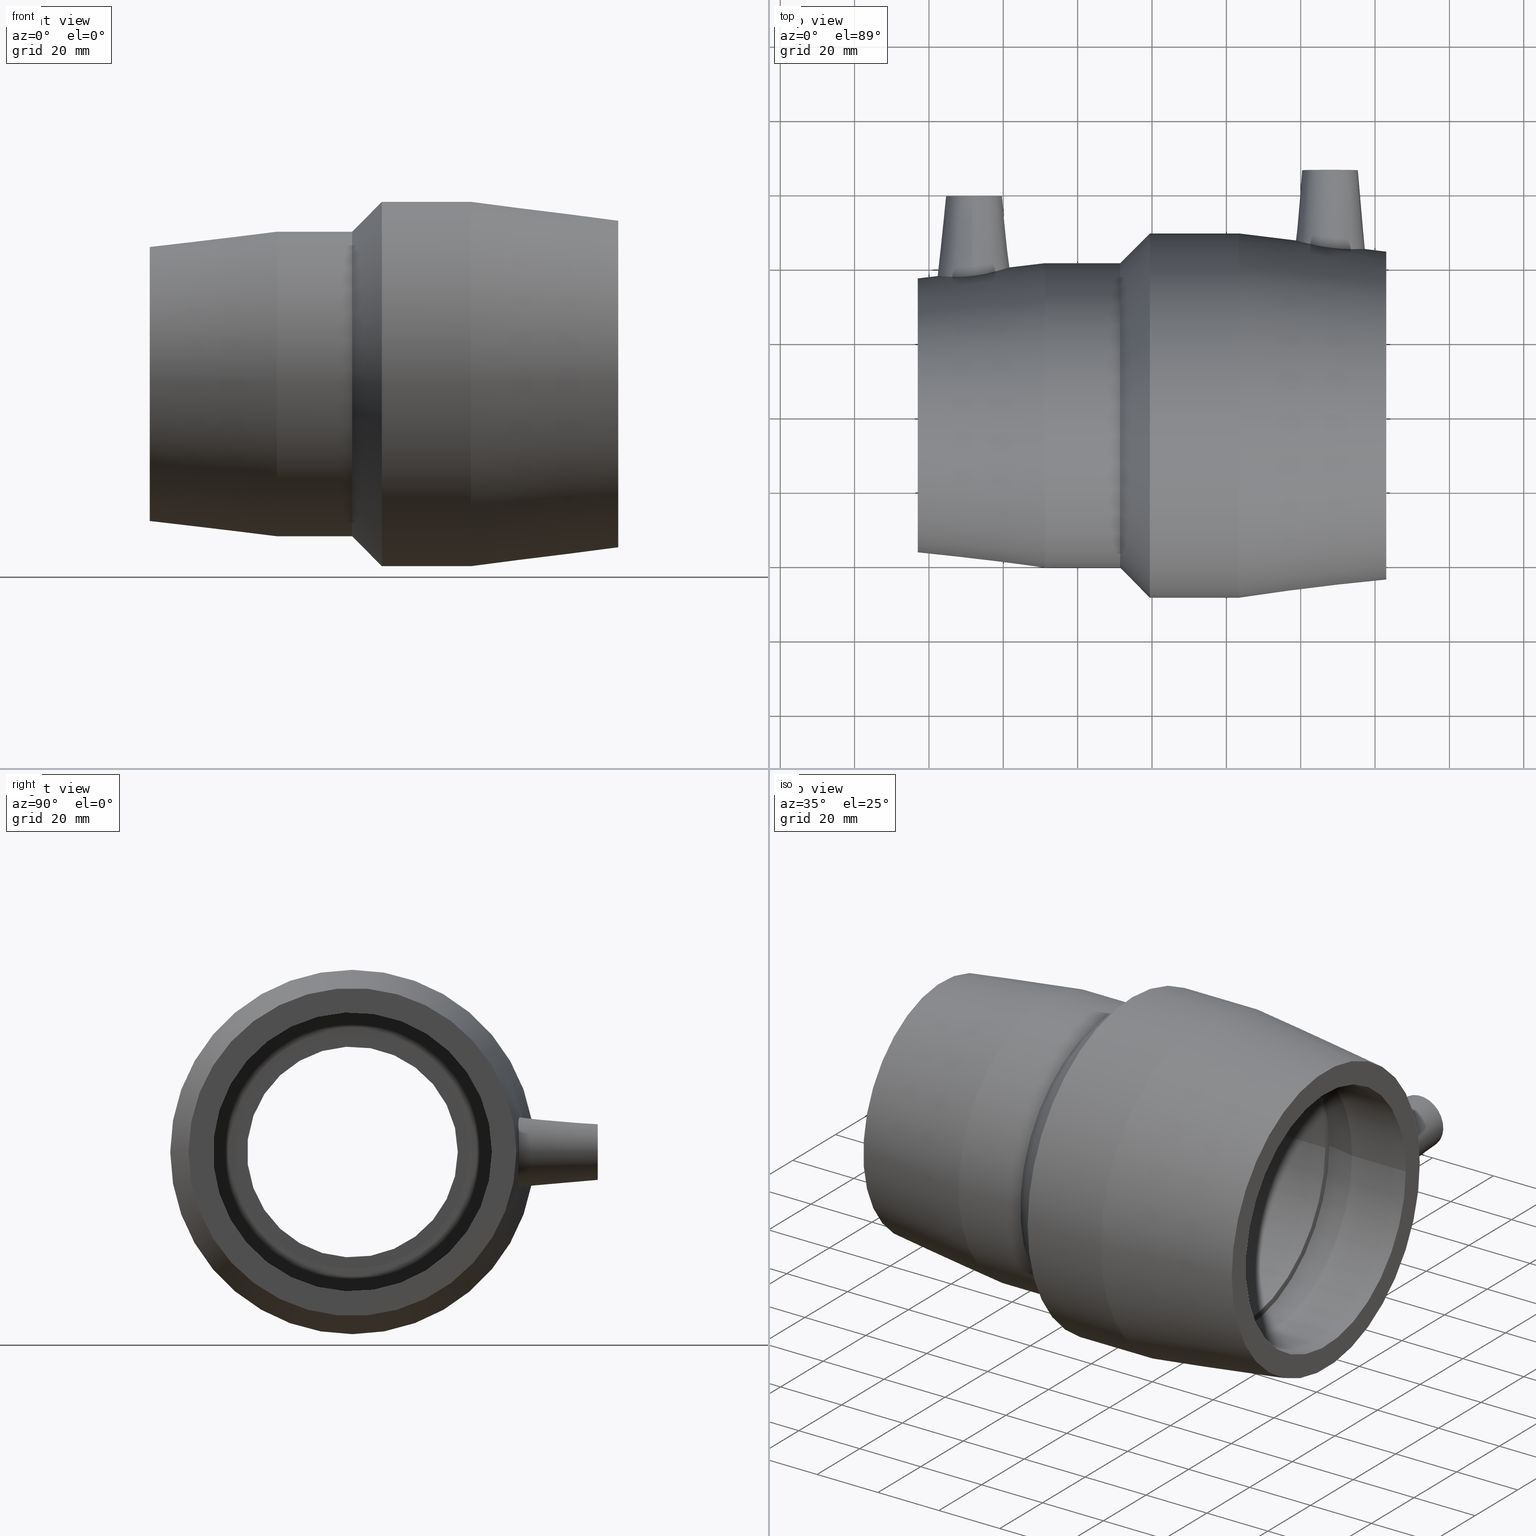
[diagram: canonical four-view strip — front | top / right | iso, engineering-drawing reading convention]
A machine part, canonical four-view strip (front | top / right | iso — engineering-drawing reading convention). The complete STEP part file that produces these views, byte-faithful:
ISO-10303-21;
HEADER;
/* Generated by software containing ST-Developer
 * from STEP Tools, Inc. (www.steptools.com) 
 */

FILE_DESCRIPTION(
/* description */ ('PLASSON REDUCING COUPLER 75-63'),
/* implementation_level */ '2;1');

FILE_NAME(
/* name */ 
'C:\\Dropbox\\KIMPROJECTS-Inventor\\99-16-3568-Processing\\ElectroFusi
on Fittings\\491104\\491104075063.ipt.stp',
/* time_stamp */ '2017-11-06T09:12:37+02:00',
/* author */ ('KIM'),
/* organization */ (''),
/* preprocessor_version */ 'ST-DEVELOPER v15.6',
/* originating_system */ 'Autodesk Inventor 2015',
/* authorisation */ '');

FILE_SCHEMA (('AUTOMOTIVE_DESIGN { 1 0 10303 214 3 1 1 }'));
ENDSEC;

DATA;
#10=MECHANICAL_DESIGN_GEOMETRIC_PRESENTATION_REPRESENTATION('',(#13),#703);
#11=SHAPE_REPRESENTATION_RELATIONSHIP('SRR','None',#712,#12);
#12=ADVANCED_BREP_SHAPE_REPRESENTATION($,(#14),#702);
#13=STYLED_ITEM('',(#721),#14);
#14=MANIFOLD_SOLID_BREP('Solid1',#356);
#15=B_SPLINE_CURVE_WITH_KNOTS('',3,(#561,#562,#563,#564,#565,#566,#567,
#568,#569,#570,#571,#572,#573,#574,#575,#576,#577,#578,#579,#580,#581,#582,
#583,#584,#585,#586,#587,#588,#589,#590,#591,#592,#593,#594),
 .UNSPECIFIED.,.T.,.F.,(4,2,2,2,2,2,2,2,2,2,2,2,2,2,2,2,4),(0.,0.34395620043497,
0.687912400869939,1.03348761298647,1.379062825103,1.72463803721953,2.07021324933607,
2.41416944977103,2.758125650206,3.12198560109004,3.48584555197407,3.84258252450327,
4.19931949703247,4.55605646956167,4.91279344209087,5.2766533929749,5.64051334385893),
 .UNSPECIFIED.);
#16=B_SPLINE_CURVE_WITH_KNOTS('',3,(#609,#610,#611,#612,#613,#614,#615,
#616,#617,#618,#619,#620,#621,#622,#623,#624,#625,#626,#627,#628,#629,#630,
#631,#632,#633,#634,#635,#636,#637,#638,#639,#640,#641,#642),
 .UNSPECIFIED.,.T.,.F.,(4,2,2,2,2,2,2,2,2,2,2,2,2,2,2,2,4),(0.,0.357374334644562,
0.714748669289124,1.07469605435596,1.43464343942279,1.79459082448962,2.15453820955646,
2.51191254420102,2.86928687884558,3.25210957605802,3.63493227327046,4.00840584046492,
4.38187940765938,4.75535297485385,5.12882654204831,5.51164923926075,5.89447193647319),
 .UNSPECIFIED.);
#17=CONICAL_SURFACE('',#370,7.5,5.);
#18=CONICAL_SURFACE('',#379,7.5,6.);
#19=CONICAL_SURFACE('',#383,45.,45.);
#20=CONICAL_SURFACE('',#387,46.55,7.0537751303925);
#21=CONICAL_SURFACE('',#393,38.4352488713481,12.);
#22=CONICAL_SURFACE('',#399,34.5,88.5679038158355);
#23=CONICAL_SURFACE('',#411,32.3077149343461,12.);
#24=CONICAL_SURFACE('',#417,38.95,6.83616718880305);
#25=FACE_BOUND('',#101,.T.);
#26=FACE_BOUND('',#103,.T.);
#27=FACE_BOUND('',#105,.T.);
#28=FACE_BOUND('',#107,.T.);
#29=FACE_BOUND('',#109,.T.);
#30=FACE_BOUND('',#111,.T.);
#31=FACE_BOUND('',#113,.T.);
#32=FACE_BOUND('',#115,.T.);
#33=FACE_BOUND('',#117,.T.);
#34=FACE_BOUND('',#119,.T.);
#35=FACE_BOUND('',#121,.T.);
#36=FACE_BOUND('',#123,.T.);
#37=FACE_BOUND('',#125,.T.);
#38=FACE_BOUND('',#127,.T.);
#39=FACE_BOUND('',#128,.T.);
#40=FACE_BOUND('',#130,.T.);
#41=FACE_BOUND('',#132,.T.);
#42=FACE_BOUND('',#134,.T.);
#43=FACE_BOUND('',#136,.T.);
#44=FACE_BOUND('',#138,.T.);
#45=FACE_BOUND('',#140,.T.);
#46=FACE_BOUND('',#142,.T.);
#47=FACE_BOUND('',#144,.T.);
#48=FACE_BOUND('',#146,.T.);
#49=FACE_BOUND('',#148,.T.);
#50=FACE_BOUND('',#150,.T.);
#51=FACE_BOUND('',#152,.T.);
#52=FACE_BOUND('',#154,.T.);
#53=FACE_BOUND('',#156,.T.);
#54=FACE_BOUND('',#158,.T.);
#55=FACE_BOUND('',#159,.T.);
#56=CYLINDRICAL_SURFACE('',#362,2.);
#57=CYLINDRICAL_SURFACE('',#364,5.);
#58=CYLINDRICAL_SURFACE('',#371,2.);
#59=CYLINDRICAL_SURFACE('',#373,5.);
#60=CYLINDRICAL_SURFACE('',#380,41.);
#61=CYLINDRICAL_SURFACE('',#385,49.);
#62=CYLINDRICAL_SURFACE('',#391,37.5);
#63=CYLINDRICAL_SURFACE('',#397,37.5);
#64=CYLINDRICAL_SURFACE('',#403,28.35);
#65=CYLINDRICAL_SURFACE('',#407,31.5);
#66=CYLINDRICAL_SURFACE('',#413,31.5);
#67=FACE_OUTER_BOUND('',#98,.T.);
#68=FACE_OUTER_BOUND('',#99,.T.);
#69=FACE_OUTER_BOUND('',#100,.T.);
#70=FACE_OUTER_BOUND('',#102,.T.);
#71=FACE_OUTER_BOUND('',#104,.T.);
#72=FACE_OUTER_BOUND('',#106,.T.);
#73=FACE_OUTER_BOUND('',#108,.T.);
#74=FACE_OUTER_BOUND('',#110,.T.);
#75=FACE_OUTER_BOUND('',#112,.T.);
#76=FACE_OUTER_BOUND('',#114,.T.);
#77=FACE_OUTER_BOUND('',#116,.T.);
#78=FACE_OUTER_BOUND('',#118,.T.);
#79=FACE_OUTER_BOUND('',#120,.T.);
#80=FACE_OUTER_BOUND('',#122,.T.);
#81=FACE_OUTER_BOUND('',#124,.T.);
#82=FACE_OUTER_BOUND('',#126,.T.);
#83=FACE_OUTER_BOUND('',#129,.T.);
#84=FACE_OUTER_BOUND('',#131,.T.);
#85=FACE_OUTER_BOUND('',#133,.T.);
#86=FACE_OUTER_BOUND('',#135,.T.);
#87=FACE_OUTER_BOUND('',#137,.T.);
#88=FACE_OUTER_BOUND('',#139,.T.);
#89=FACE_OUTER_BOUND('',#141,.T.);
#90=FACE_OUTER_BOUND('',#143,.T.);
#91=FACE_OUTER_BOUND('',#145,.T.);
#92=FACE_OUTER_BOUND('',#147,.T.);
#93=FACE_OUTER_BOUND('',#149,.T.);
#94=FACE_OUTER_BOUND('',#151,.T.);
#95=FACE_OUTER_BOUND('',#153,.T.);
#96=FACE_OUTER_BOUND('',#155,.T.);
#97=FACE_OUTER_BOUND('',#157,.T.);
#98=EDGE_LOOP('',(#251));
#99=EDGE_LOOP('',(#252));
#100=EDGE_LOOP('',(#253));
#101=EDGE_LOOP('',(#254));
#102=EDGE_LOOP('',(#255));
#103=EDGE_LOOP('',(#256));
#104=EDGE_LOOP('',(#257));
#105=EDGE_LOOP('',(#258));
#106=EDGE_LOOP('',(#259));
#107=EDGE_LOOP('',(#260));
#108=EDGE_LOOP('',(#261));
#109=EDGE_LOOP('',(#262));
#110=EDGE_LOOP('',(#263));
#111=EDGE_LOOP('',(#264));
#112=EDGE_LOOP('',(#265));
#113=EDGE_LOOP('',(#266));
#114=EDGE_LOOP('',(#267));
#115=EDGE_LOOP('',(#268));
#116=EDGE_LOOP('',(#269));
#117=EDGE_LOOP('',(#270));
#118=EDGE_LOOP('',(#271));
#119=EDGE_LOOP('',(#272));
#120=EDGE_LOOP('',(#273));
#121=EDGE_LOOP('',(#274));
#122=EDGE_LOOP('',(#275));
#123=EDGE_LOOP('',(#276));
#124=EDGE_LOOP('',(#277));
#125=EDGE_LOOP('',(#278));
#126=EDGE_LOOP('',(#279));
#127=EDGE_LOOP('',(#280));
#128=EDGE_LOOP('',(#281));
#129=EDGE_LOOP('',(#282));
#130=EDGE_LOOP('',(#283));
#131=EDGE_LOOP('',(#284));
#132=EDGE_LOOP('',(#285));
#133=EDGE_LOOP('',(#286));
#134=EDGE_LOOP('',(#287));
#135=EDGE_LOOP('',(#288));
#136=EDGE_LOOP('',(#289));
#137=EDGE_LOOP('',(#290));
#138=EDGE_LOOP('',(#291));
#139=EDGE_LOOP('',(#292));
#140=EDGE_LOOP('',(#293));
#141=EDGE_LOOP('',(#294));
#142=EDGE_LOOP('',(#295));
#143=EDGE_LOOP('',(#296));
#144=EDGE_LOOP('',(#297));
#145=EDGE_LOOP('',(#298));
#146=EDGE_LOOP('',(#299));
#147=EDGE_LOOP('',(#300));
#148=EDGE_LOOP('',(#301));
#149=EDGE_LOOP('',(#302));
#150=EDGE_LOOP('',(#303));
#151=EDGE_LOOP('',(#304));
#152=EDGE_LOOP('',(#305));
#153=EDGE_LOOP('',(#306));
#154=EDGE_LOOP('',(#307));
#155=EDGE_LOOP('',(#308));
#156=EDGE_LOOP('',(#309));
#157=EDGE_LOOP('',(#310));
#158=EDGE_LOOP('',(#311));
#159=EDGE_LOOP('',(#312));
#160=CIRCLE('',#359,2.);
#161=CIRCLE('',#361,2.);
#162=CIRCLE('',#363,2.);
#163=CIRCLE('',#365,5.);
#164=CIRCLE('',#366,5.);
#165=CIRCLE('',#369,7.5);
#166=CIRCLE('',#372,2.);
#167=CIRCLE('',#374,5.);
#168=CIRCLE('',#375,5.);
#169=CIRCLE('',#378,7.5);
#170=CIRCLE('',#381,41.);
#171=CIRCLE('',#382,41.);
#172=CIRCLE('',#384,49.);
#173=CIRCLE('',#386,49.);
#174=CIRCLE('',#388,44.1);
#175=CIRCLE('',#390,37.5);
#176=CIRCLE('',#392,37.5);
#177=CIRCLE('',#394,39.3704977426962);
#178=CIRCLE('',#396,37.5);
#179=CIRCLE('',#398,37.5);
#180=CIRCLE('',#400,31.5);
#181=CIRCLE('',#402,28.35);
#182=CIRCLE('',#404,28.35);
#183=CIRCLE('',#406,31.5);
#184=CIRCLE('',#408,31.5);
#185=CIRCLE('',#410,33.1154298686922);
#186=CIRCLE('',#412,31.5);
#187=CIRCLE('',#414,31.5);
#188=CIRCLE('',#416,36.9);
#189=VERTEX_POINT('',#542);
#190=VERTEX_POINT('',#545);
#191=VERTEX_POINT('',#548);
#192=VERTEX_POINT('',#551);
#193=VERTEX_POINT('',#553);
#194=VERTEX_POINT('',#557);
#195=VERTEX_POINT('',#560);
#196=VERTEX_POINT('',#596);
#197=VERTEX_POINT('',#599);
#198=VERTEX_POINT('',#601);
#199=VERTEX_POINT('',#605);
#200=VERTEX_POINT('',#608);
#201=VERTEX_POINT('',#644);
#202=VERTEX_POINT('',#646);
#203=VERTEX_POINT('',#649);
#204=VERTEX_POINT('',#652);
#205=VERTEX_POINT('',#655);
#206=VERTEX_POINT('',#658);
#207=VERTEX_POINT('',#661);
#208=VERTEX_POINT('',#664);
#209=VERTEX_POINT('',#667);
#210=VERTEX_POINT('',#670);
#211=VERTEX_POINT('',#673);
#212=VERTEX_POINT('',#676);
#213=VERTEX_POINT('',#679);
#214=VERTEX_POINT('',#682);
#215=VERTEX_POINT('',#685);
#216=VERTEX_POINT('',#688);
#217=VERTEX_POINT('',#691);
#218=VERTEX_POINT('',#694);
#219=VERTEX_POINT('',#697);
#220=EDGE_CURVE('',#189,#189,#160,.T.);
#221=EDGE_CURVE('',#190,#190,#161,.T.);
#222=EDGE_CURVE('',#191,#191,#162,.T.);
#223=EDGE_CURVE('',#192,#192,#163,.T.);
#224=EDGE_CURVE('',#193,#193,#164,.T.);
#225=EDGE_CURVE('',#194,#194,#165,.T.);
#226=EDGE_CURVE('',#195,#195,#15,.T.);
#227=EDGE_CURVE('',#196,#196,#166,.T.);
#228=EDGE_CURVE('',#197,#197,#167,.T.);
#229=EDGE_CURVE('',#198,#198,#168,.T.);
#230=EDGE_CURVE('',#199,#199,#169,.T.);
#231=EDGE_CURVE('',#200,#200,#16,.T.);
#232=EDGE_CURVE('',#201,#201,#170,.T.);
#233=EDGE_CURVE('',#202,#202,#171,.T.);
#234=EDGE_CURVE('',#203,#203,#172,.T.);
#235=EDGE_CURVE('',#204,#204,#173,.T.);
#236=EDGE_CURVE('',#205,#205,#174,.T.);
#237=EDGE_CURVE('',#206,#206,#175,.T.);
#238=EDGE_CURVE('',#207,#207,#176,.T.);
#239=EDGE_CURVE('',#208,#208,#177,.T.);
#240=EDGE_CURVE('',#209,#209,#178,.T.);
#241=EDGE_CURVE('',#210,#210,#179,.T.);
#242=EDGE_CURVE('',#211,#211,#180,.T.);
#243=EDGE_CURVE('',#212,#212,#181,.T.);
#244=EDGE_CURVE('',#213,#213,#182,.T.);
#245=EDGE_CURVE('',#214,#214,#183,.T.);
#246=EDGE_CURVE('',#215,#215,#184,.T.);
#247=EDGE_CURVE('',#216,#216,#185,.T.);
#248=EDGE_CURVE('',#217,#217,#186,.T.);
#249=EDGE_CURVE('',#218,#218,#187,.T.);
#250=EDGE_CURVE('',#219,#219,#188,.T.);
#251=ORIENTED_EDGE('',*,*,#220,.F.);
#252=ORIENTED_EDGE('',*,*,#221,.F.);
#253=ORIENTED_EDGE('',*,*,#220,.T.);
#254=ORIENTED_EDGE('',*,*,#222,.T.);
#255=ORIENTED_EDGE('',*,*,#223,.T.);
#256=ORIENTED_EDGE('',*,*,#224,.F.);
#257=ORIENTED_EDGE('',*,*,#223,.F.);
#258=ORIENTED_EDGE('',*,*,#222,.F.);
#259=ORIENTED_EDGE('',*,*,#225,.F.);
#260=ORIENTED_EDGE('',*,*,#224,.T.);
#261=ORIENTED_EDGE('',*,*,#225,.T.);
#262=ORIENTED_EDGE('',*,*,#226,.F.);
#263=ORIENTED_EDGE('',*,*,#221,.T.);
#264=ORIENTED_EDGE('',*,*,#227,.T.);
#265=ORIENTED_EDGE('',*,*,#228,.T.);
#266=ORIENTED_EDGE('',*,*,#229,.F.);
#267=ORIENTED_EDGE('',*,*,#228,.F.);
#268=ORIENTED_EDGE('',*,*,#227,.F.);
#269=ORIENTED_EDGE('',*,*,#230,.F.);
#270=ORIENTED_EDGE('',*,*,#229,.T.);
#271=ORIENTED_EDGE('',*,*,#230,.T.);
#272=ORIENTED_EDGE('',*,*,#231,.F.);
#273=ORIENTED_EDGE('',*,*,#232,.F.);
#274=ORIENTED_EDGE('',*,*,#233,.T.);
#275=ORIENTED_EDGE('',*,*,#234,.F.);
#276=ORIENTED_EDGE('',*,*,#232,.T.);
#277=ORIENTED_EDGE('',*,*,#235,.F.);
#278=ORIENTED_EDGE('',*,*,#234,.T.);
#279=ORIENTED_EDGE('',*,*,#236,.F.);
#280=ORIENTED_EDGE('',*,*,#226,.T.);
#281=ORIENTED_EDGE('',*,*,#235,.T.);
#282=ORIENTED_EDGE('',*,*,#236,.T.);
#283=ORIENTED_EDGE('',*,*,#237,.F.);
#284=ORIENTED_EDGE('',*,*,#238,.F.);
#285=ORIENTED_EDGE('',*,*,#237,.T.);
#286=ORIENTED_EDGE('',*,*,#239,.F.);
#287=ORIENTED_EDGE('',*,*,#238,.T.);
#288=ORIENTED_EDGE('',*,*,#239,.T.);
#289=ORIENTED_EDGE('',*,*,#240,.F.);
#290=ORIENTED_EDGE('',*,*,#241,.F.);
#291=ORIENTED_EDGE('',*,*,#240,.T.);
#292=ORIENTED_EDGE('',*,*,#242,.F.);
#293=ORIENTED_EDGE('',*,*,#241,.T.);
#294=ORIENTED_EDGE('',*,*,#242,.T.);
#295=ORIENTED_EDGE('',*,*,#243,.F.);
#296=ORIENTED_EDGE('',*,*,#244,.F.);
#297=ORIENTED_EDGE('',*,*,#243,.T.);
#298=ORIENTED_EDGE('',*,*,#245,.F.);
#299=ORIENTED_EDGE('',*,*,#244,.T.);
#300=ORIENTED_EDGE('',*,*,#246,.F.);
#301=ORIENTED_EDGE('',*,*,#245,.T.);
#302=ORIENTED_EDGE('',*,*,#247,.F.);
#303=ORIENTED_EDGE('',*,*,#246,.T.);
#304=ORIENTED_EDGE('',*,*,#248,.F.);
#305=ORIENTED_EDGE('',*,*,#247,.T.);
#306=ORIENTED_EDGE('',*,*,#249,.F.);
#307=ORIENTED_EDGE('',*,*,#248,.T.);
#308=ORIENTED_EDGE('',*,*,#250,.F.);
#309=ORIENTED_EDGE('',*,*,#249,.T.);
#310=ORIENTED_EDGE('',*,*,#233,.F.);
#311=ORIENTED_EDGE('',*,*,#231,.T.);
#312=ORIENTED_EDGE('',*,*,#250,.T.);
#313=PLANE('',#358);
#314=PLANE('',#360);
#315=PLANE('',#367);
#316=PLANE('',#368);
#317=PLANE('',#376);
#318=PLANE('',#377);
#319=PLANE('',#389);
#320=PLANE('',#395);
#321=PLANE('',#401);
#322=PLANE('',#405);
#323=PLANE('',#409);
#324=PLANE('',#415);
#325=ADVANCED_FACE('',(#67),#313,.T.);
#326=ADVANCED_FACE('',(#68),#314,.T.);
#327=ADVANCED_FACE('',(#69,#25),#56,.T.);
#328=ADVANCED_FACE('',(#70,#26),#57,.F.);
#329=ADVANCED_FACE('',(#71,#27),#315,.T.);
#330=ADVANCED_FACE('',(#72,#28),#316,.T.);
#331=ADVANCED_FACE('',(#73,#29),#17,.T.);
#332=ADVANCED_FACE('',(#74,#30),#58,.T.);
#333=ADVANCED_FACE('',(#75,#31),#59,.F.);
#334=ADVANCED_FACE('',(#76,#32),#317,.T.);
#335=ADVANCED_FACE('',(#77,#33),#318,.T.);
#336=ADVANCED_FACE('',(#78,#34),#18,.T.);
#337=ADVANCED_FACE('',(#79,#35),#60,.T.);
#338=ADVANCED_FACE('',(#80,#36),#19,.T.);
#339=ADVANCED_FACE('',(#81,#37),#61,.T.);
#340=ADVANCED_FACE('',(#82,#38,#39),#20,.T.);
#341=ADVANCED_FACE('',(#83,#40),#319,.T.);
#342=ADVANCED_FACE('',(#84,#41),#62,.F.);
#343=ADVANCED_FACE('',(#85,#42),#21,.F.);
#344=ADVANCED_FACE('',(#86,#43),#320,.T.);
#345=ADVANCED_FACE('',(#87,#44),#63,.F.);
#346=ADVANCED_FACE('',(#88,#45),#22,.F.);
#347=ADVANCED_FACE('',(#89,#46),#321,.T.);
#348=ADVANCED_FACE('',(#90,#47),#64,.F.);
#349=ADVANCED_FACE('',(#91,#48),#322,.T.);
#350=ADVANCED_FACE('',(#92,#49),#65,.F.);
#351=ADVANCED_FACE('',(#93,#50),#323,.T.);
#352=ADVANCED_FACE('',(#94,#51),#23,.F.);
#353=ADVANCED_FACE('',(#95,#52),#66,.F.);
#354=ADVANCED_FACE('',(#96,#53),#324,.T.);
#355=ADVANCED_FACE('',(#97,#54,#55),#24,.T.);
#356=CLOSED_SHELL('',(#325,#326,#327,#328,#329,#330,#331,#332,#333,#334,
#335,#336,#337,#338,#339,#340,#341,#342,#343,#344,#345,#346,#347,#348,#349,
#350,#351,#352,#353,#354,#355));
#357=AXIS2_PLACEMENT_3D('placement',#540,#418,#419);
#358=AXIS2_PLACEMENT_3D('',#541,#420,#421);
#359=AXIS2_PLACEMENT_3D('',#543,#422,#423);
#360=AXIS2_PLACEMENT_3D('',#544,#424,#425);
#361=AXIS2_PLACEMENT_3D('',#546,#426,#427);
#362=AXIS2_PLACEMENT_3D('',#547,#428,#429);
#363=AXIS2_PLACEMENT_3D('',#549,#430,#431);
#364=AXIS2_PLACEMENT_3D('',#550,#432,#433);
#365=AXIS2_PLACEMENT_3D('',#552,#434,#435);
#366=AXIS2_PLACEMENT_3D('',#554,#436,#437);
#367=AXIS2_PLACEMENT_3D('',#555,#438,#439);
#368=AXIS2_PLACEMENT_3D('',#556,#440,#441);
#369=AXIS2_PLACEMENT_3D('',#558,#442,#443);
#370=AXIS2_PLACEMENT_3D('',#559,#444,#445);
#371=AXIS2_PLACEMENT_3D('',#595,#446,#447);
#372=AXIS2_PLACEMENT_3D('',#597,#448,#449);
#373=AXIS2_PLACEMENT_3D('',#598,#450,#451);
#374=AXIS2_PLACEMENT_3D('',#600,#452,#453);
#375=AXIS2_PLACEMENT_3D('',#602,#454,#455);
#376=AXIS2_PLACEMENT_3D('',#603,#456,#457);
#377=AXIS2_PLACEMENT_3D('',#604,#458,#459);
#378=AXIS2_PLACEMENT_3D('',#606,#460,#461);
#379=AXIS2_PLACEMENT_3D('',#607,#462,#463);
#380=AXIS2_PLACEMENT_3D('',#643,#464,#465);
#381=AXIS2_PLACEMENT_3D('',#645,#466,#467);
#382=AXIS2_PLACEMENT_3D('',#647,#468,#469);
#383=AXIS2_PLACEMENT_3D('',#648,#470,#471);
#384=AXIS2_PLACEMENT_3D('',#650,#472,#473);
#385=AXIS2_PLACEMENT_3D('',#651,#474,#475);
#386=AXIS2_PLACEMENT_3D('',#653,#476,#477);
#387=AXIS2_PLACEMENT_3D('',#654,#478,#479);
#388=AXIS2_PLACEMENT_3D('',#656,#480,#481);
#389=AXIS2_PLACEMENT_3D('',#657,#482,#483);
#390=AXIS2_PLACEMENT_3D('',#659,#484,#485);
#391=AXIS2_PLACEMENT_3D('',#660,#486,#487);
#392=AXIS2_PLACEMENT_3D('',#662,#488,#489);
#393=AXIS2_PLACEMENT_3D('',#663,#490,#491);
#394=AXIS2_PLACEMENT_3D('',#665,#492,#493);
#395=AXIS2_PLACEMENT_3D('',#666,#494,#495);
#396=AXIS2_PLACEMENT_3D('',#668,#496,#497);
#397=AXIS2_PLACEMENT_3D('',#669,#498,#499);
#398=AXIS2_PLACEMENT_3D('',#671,#500,#501);
#399=AXIS2_PLACEMENT_3D('',#672,#502,#503);
#400=AXIS2_PLACEMENT_3D('',#674,#504,#505);
#401=AXIS2_PLACEMENT_3D('',#675,#506,#507);
#402=AXIS2_PLACEMENT_3D('',#677,#508,#509);
#403=AXIS2_PLACEMENT_3D('',#678,#510,#511);
#404=AXIS2_PLACEMENT_3D('',#680,#512,#513);
#405=AXIS2_PLACEMENT_3D('',#681,#514,#515);
#406=AXIS2_PLACEMENT_3D('',#683,#516,#517);
#407=AXIS2_PLACEMENT_3D('',#684,#518,#519);
#408=AXIS2_PLACEMENT_3D('',#686,#520,#521);
#409=AXIS2_PLACEMENT_3D('',#687,#522,#523);
#410=AXIS2_PLACEMENT_3D('',#689,#524,#525);
#411=AXIS2_PLACEMENT_3D('',#690,#526,#527);
#412=AXIS2_PLACEMENT_3D('',#692,#528,#529);
#413=AXIS2_PLACEMENT_3D('',#693,#530,#531);
#414=AXIS2_PLACEMENT_3D('',#695,#532,#533);
#415=AXIS2_PLACEMENT_3D('',#696,#534,#535);
#416=AXIS2_PLACEMENT_3D('',#698,#536,#537);
#417=AXIS2_PLACEMENT_3D('',#699,#538,#539);
#418=DIRECTION('axis',(0.,0.,1.));
#419=DIRECTION('refdir',(1.,0.,0.));
#420=DIRECTION('center_axis',(0.,1.,0.));
#421=DIRECTION('ref_axis',(0.,0.,1.));
#422=DIRECTION('center_axis',(0.,-1.,0.));
#423=DIRECTION('ref_axis',(1.,0.,0.));
#424=DIRECTION('center_axis',(0.,1.,0.));
#425=DIRECTION('ref_axis',(0.,0.,1.));
#426=DIRECTION('center_axis',(0.,-1.,0.));
#427=DIRECTION('ref_axis',(-1.,0.,0.));
#428=DIRECTION('center_axis',(0.,-1.,0.));
#429=DIRECTION('ref_axis',(1.,0.,0.));
#430=DIRECTION('center_axis',(0.,1.,0.));
#431=DIRECTION('ref_axis',(1.,0.,0.));
#432=DIRECTION('center_axis',(0.,-1.,0.));
#433=DIRECTION('ref_axis',(1.,0.,0.));
#434=DIRECTION('center_axis',(0.,-1.,0.));
#435=DIRECTION('ref_axis',(1.,0.,0.));
#436=DIRECTION('center_axis',(0.,-1.,0.));
#437=DIRECTION('ref_axis',(1.,0.,0.));
#438=DIRECTION('center_axis',(0.,1.,0.));
#439=DIRECTION('ref_axis',(0.,0.,1.));
#440=DIRECTION('center_axis',(0.,1.,0.));
#441=DIRECTION('ref_axis',(0.,0.,1.));
#442=DIRECTION('center_axis',(0.,-1.,0.));
#443=DIRECTION('ref_axis',(1.,0.,0.));
#444=DIRECTION('center_axis',(0.,-1.,0.));
#445=DIRECTION('ref_axis',(1.,0.,0.));
#446=DIRECTION('center_axis',(0.,-1.,0.));
#447=DIRECTION('ref_axis',(-1.,0.,0.));
#448=DIRECTION('center_axis',(0.,1.,0.));
#449=DIRECTION('ref_axis',(-1.,0.,0.));
#450=DIRECTION('center_axis',(0.,-1.,0.));
#451=DIRECTION('ref_axis',(-1.,0.,0.));
#452=DIRECTION('center_axis',(0.,-1.,0.));
#453=DIRECTION('ref_axis',(-1.,0.,0.));
#454=DIRECTION('center_axis',(0.,-1.,0.));
#455=DIRECTION('ref_axis',(-1.,0.,0.));
#456=DIRECTION('center_axis',(0.,1.,0.));
#457=DIRECTION('ref_axis',(0.,0.,1.));
#458=DIRECTION('center_axis',(0.,1.,0.));
#459=DIRECTION('ref_axis',(0.,0.,1.));
#460=DIRECTION('center_axis',(0.,-1.,0.));
#461=DIRECTION('ref_axis',(1.,0.,0.));
#462=DIRECTION('center_axis',(0.,-1.,0.));
#463=DIRECTION('ref_axis',(1.,0.,0.));
#464=DIRECTION('center_axis',(1.,1.83697019872103E-16,0.));
#465=DIRECTION('ref_axis',(-1.72213011695957E-16,1.,0.));
#466=DIRECTION('center_axis',(1.,1.83697019872103E-16,0.));
#467=DIRECTION('ref_axis',(0.,0.,-1.));
#468=DIRECTION('center_axis',(1.,1.83697019872103E-16,0.));
#469=DIRECTION('ref_axis',(0.,0.,-1.));
#470=DIRECTION('center_axis',(1.,1.83697019872103E-16,0.));
#471=DIRECTION('ref_axis',(-1.72213011695957E-16,1.,0.));
#472=DIRECTION('center_axis',(1.,1.83697019872103E-16,0.));
#473=DIRECTION('ref_axis',(0.,0.,-1.));
#474=DIRECTION('center_axis',(1.,1.83697019872103E-16,0.));
#475=DIRECTION('ref_axis',(-1.72213011695957E-16,1.,0.));
#476=DIRECTION('center_axis',(1.,1.83697019872103E-16,0.));
#477=DIRECTION('ref_axis',(0.,0.,-1.));
#478=DIRECTION('center_axis',(-1.,-1.83697019872103E-16,0.));
#479=DIRECTION('ref_axis',(-1.72213011695957E-16,1.,0.));
#480=DIRECTION('center_axis',(1.,1.83697019872103E-16,0.));
#481=DIRECTION('ref_axis',(0.,0.,-1.));
#482=DIRECTION('center_axis',(1.,1.83697019872103E-16,0.));
#483=DIRECTION('ref_axis',(0.,0.,-1.));
#484=DIRECTION('center_axis',(1.,1.83697019872103E-16,0.));
#485=DIRECTION('ref_axis',(0.,0.,-1.));
#486=DIRECTION('center_axis',(1.,1.83697019872103E-16,0.));
#487=DIRECTION('ref_axis',(-1.72213011695957E-16,1.,0.));
#488=DIRECTION('center_axis',(1.,1.83697019872103E-16,0.));
#489=DIRECTION('ref_axis',(0.,0.,-1.));
#490=DIRECTION('center_axis',(-1.,-1.83697019872103E-16,0.));
#491=DIRECTION('ref_axis',(-1.72213011695957E-16,1.,0.));
#492=DIRECTION('center_axis',(1.,1.83697019872103E-16,0.));
#493=DIRECTION('ref_axis',(0.,0.,-1.));
#494=DIRECTION('center_axis',(1.,1.83697019872103E-16,0.));
#495=DIRECTION('ref_axis',(0.,0.,-1.));
#496=DIRECTION('center_axis',(1.,1.83697019872103E-16,0.));
#497=DIRECTION('ref_axis',(0.,0.,-1.));
#498=DIRECTION('center_axis',(1.,1.83697019872103E-16,0.));
#499=DIRECTION('ref_axis',(-1.72213011695957E-16,1.,0.));
#500=DIRECTION('center_axis',(1.,1.83697019872103E-16,0.));
#501=DIRECTION('ref_axis',(0.,0.,-1.));
#502=DIRECTION('center_axis',(1.,1.83697019872103E-16,0.));
#503=DIRECTION('ref_axis',(-1.72213011695957E-16,1.,0.));
#504=DIRECTION('center_axis',(1.,1.83697019872103E-16,0.));
#505=DIRECTION('ref_axis',(0.,0.,-1.));
#506=DIRECTION('center_axis',(1.,1.83697019872103E-16,0.));
#507=DIRECTION('ref_axis',(0.,0.,-1.));
#508=DIRECTION('center_axis',(1.,1.83697019872103E-16,0.));
#509=DIRECTION('ref_axis',(0.,0.,-1.));
#510=DIRECTION('center_axis',(1.,1.83697019872103E-16,0.));
#511=DIRECTION('ref_axis',(-1.72213011695957E-16,1.,0.));
#512=DIRECTION('center_axis',(1.,1.83697019872103E-16,0.));
#513=DIRECTION('ref_axis',(0.,0.,-1.));
#514=DIRECTION('center_axis',(-1.,-1.83697019872103E-16,0.));
#515=DIRECTION('ref_axis',(0.,0.,1.));
#516=DIRECTION('center_axis',(1.,1.83697019872103E-16,0.));
#517=DIRECTION('ref_axis',(0.,0.,-1.));
#518=DIRECTION('center_axis',(1.,1.83697019872103E-16,0.));
#519=DIRECTION('ref_axis',(-1.72213011695957E-16,1.,0.));
#520=DIRECTION('center_axis',(1.,1.83697019872103E-16,0.));
#521=DIRECTION('ref_axis',(0.,0.,-1.));
#522=DIRECTION('center_axis',(-1.,-1.83697019872103E-16,0.));
#523=DIRECTION('ref_axis',(0.,0.,1.));
#524=DIRECTION('center_axis',(1.,1.83697019872103E-16,0.));
#525=DIRECTION('ref_axis',(0.,0.,-1.));
#526=DIRECTION('center_axis',(1.,1.83697019872103E-16,0.));
#527=DIRECTION('ref_axis',(-1.72213011695957E-16,1.,0.));
#528=DIRECTION('center_axis',(1.,1.83697019872103E-16,0.));
#529=DIRECTION('ref_axis',(0.,0.,-1.));
#530=DIRECTION('center_axis',(1.,1.83697019872103E-16,0.));
#531=DIRECTION('ref_axis',(-1.72213011695957E-16,1.,0.));
#532=DIRECTION('center_axis',(1.,1.83697019872103E-16,0.));
#533=DIRECTION('ref_axis',(0.,0.,-1.));
#534=DIRECTION('center_axis',(-1.,-1.83697019872103E-16,0.));
#535=DIRECTION('ref_axis',(0.,0.,1.));
#536=DIRECTION('center_axis',(1.,1.83697019872103E-16,0.));
#537=DIRECTION('ref_axis',(0.,0.,-1.));
#538=DIRECTION('center_axis',(1.,1.83697019872103E-16,0.));
#539=DIRECTION('ref_axis',(-1.72213011695957E-16,1.,0.));
#540=CARTESIAN_POINT('',(0.,0.,0.));
#541=CARTESIAN_POINT('Origin',(47.88,63.,0.));
#542=CARTESIAN_POINT('',(49.88,63.,-2.44929359829471E-16));
#543=CARTESIAN_POINT('Origin',(47.88,63.,0.));
#544=CARTESIAN_POINT('Origin',(-47.88,56.,0.));
#545=CARTESIAN_POINT('',(-45.88,56.,-2.44929359829471E-16));
#546=CARTESIAN_POINT('Origin',(-47.88,56.,0.));
#547=CARTESIAN_POINT('Origin',(47.88,66.,0.));
#548=CARTESIAN_POINT('',(45.88,52.,2.44929359829471E-16));
#549=CARTESIAN_POINT('Origin',(47.88,52.,0.));
#550=CARTESIAN_POINT('Origin',(47.88,66.,0.));
#551=CARTESIAN_POINT('',(42.88,52.,6.12323399573677E-16));
#552=CARTESIAN_POINT('Origin',(47.88,52.,0.));
#553=CARTESIAN_POINT('',(42.88,66.,6.12323399573677E-16));
#554=CARTESIAN_POINT('Origin',(47.88,66.,0.));
#555=CARTESIAN_POINT('Origin',(47.88,52.,9.25185853854297E-17));
#556=CARTESIAN_POINT('Origin',(47.88,66.,1.2335811384724E-16));
#557=CARTESIAN_POINT('',(40.38,66.,9.18485099360515E-16));
#558=CARTESIAN_POINT('Origin',(47.88,66.,0.));
#559=CARTESIAN_POINT('Origin',(47.88,66.,0.));
#560=CARTESIAN_POINT('',(48.2137064034527,44.9712083842015,-9.33381737614449));
#561=CARTESIAN_POINT('Ctrl Pts',(48.2137064034524,44.9712083842015,-9.3338173761445));
#562=CARTESIAN_POINT('Ctrl Pts',(49.3515494391714,44.8333526035583,-9.30520527682581));
#563=CARTESIAN_POINT('Ctrl Pts',(50.5649429282076,44.7350401600316,-9.04921684228865));
#564=CARTESIAN_POINT('Ctrl Pts',(52.7917258281062,44.6420573218464,-8.06997832187232));
#565=CARTESIAN_POINT('Ctrl Pts',(53.8050006376694,44.6447155043253,-7.34672312148968));
#566=CARTESIAN_POINT('Ctrl Pts',(55.4027529766413,44.6861334591937,-5.69496967484756));
#567=CARTESIAN_POINT('Ctrl Pts',(56.094112377947,44.7273753561429,-4.6538380592575));
#568=CARTESIAN_POINT('Ctrl Pts',(57.0095122632139,44.792294755975,-2.38234177724648));
#569=CARTESIAN_POINT('Ctrl Pts',(57.2335766378065,44.8135220826957,-1.15191737372177));
#570=CARTESIAN_POINT('Ctrl Pts',(57.2335766378065,44.8135220826957,1.15191737372177));
#571=CARTESIAN_POINT('Ctrl Pts',(57.0095122632139,44.792294755975,2.38234177724648));
#572=CARTESIAN_POINT('Ctrl Pts',(56.094112377947,44.7273753561429,4.65383805925749));
#573=CARTESIAN_POINT('Ctrl Pts',(55.4027529766413,44.6861334591937,5.69496967484756));
#574=CARTESIAN_POINT('Ctrl Pts',(53.8050006376694,44.6447155043253,7.34672312148968));
#575=CARTESIAN_POINT('Ctrl Pts',(52.7917258281062,44.6420573218464,8.06997832187232));
#576=CARTESIAN_POINT('Ctrl Pts',(50.5649429282076,44.7350401600316,9.04921684228865));
#577=CARTESIAN_POINT('Ctrl Pts',(49.3515494391714,44.8333526035583,9.30520527682581));
#578=CARTESIAN_POINT('Ctrl Pts',(47.0100196823906,45.1170414801321,9.36408517489219));
#579=CARTESIAN_POINT('Ctrl Pts',(45.7318684592234,45.3261098535047,9.14520376562295));
#580=CARTESIAN_POINT('Ctrl Pts',(43.3865219786432,45.8009325594546,8.20281751581427));
#581=CARTESIAN_POINT('Ctrl Pts',(42.3185953318503,46.0637722604091,7.47966679449737));
#582=CARTESIAN_POINT('Ctrl Pts',(40.6478060586383,46.5116184611611,5.81309794842849));
#583=CARTESIAN_POINT('Ctrl Pts',(39.9265628580757,46.7272536877518,4.76390076933884));
#584=CARTESIAN_POINT('Ctrl Pts',(38.9658586603202,47.0244155377933,2.45214724369919));
#585=CARTESIAN_POINT('Ctrl Pts',(38.7267709607945,47.1035056134371,1.189123241764));
#586=CARTESIAN_POINT('Ctrl Pts',(38.7267709607945,47.1035056134371,-1.189123241764));
#587=CARTESIAN_POINT('Ctrl Pts',(38.9658586603202,47.0244155377933,-2.45214724369919));
#588=CARTESIAN_POINT('Ctrl Pts',(39.9265628580757,46.7272536877518,-4.76390076933883));
#589=CARTESIAN_POINT('Ctrl Pts',(40.6478060586383,46.5116184611611,-5.81309794842848));
#590=CARTESIAN_POINT('Ctrl Pts',(42.3185953318503,46.0637722604091,-7.47966679449737));
#591=CARTESIAN_POINT('Ctrl Pts',(43.3865219786432,45.8009325594546,-8.20281751581428));
#592=CARTESIAN_POINT('Ctrl Pts',(45.7318684592234,45.3261098535047,-9.14520376562295));
#593=CARTESIAN_POINT('Ctrl Pts',(47.0100196823906,45.1170414801321,-9.36408517489219));
#594=CARTESIAN_POINT('Ctrl Pts',(48.2137064034524,44.9712083842015,-9.3338173761445));
#595=CARTESIAN_POINT('Origin',(-47.88,59.,0.));
#596=CARTESIAN_POINT('',(-45.88,45.,-2.44929359829471E-16));
#597=CARTESIAN_POINT('Origin',(-47.88,45.,0.));
#598=CARTESIAN_POINT('Origin',(-47.88,59.,0.));
#599=CARTESIAN_POINT('',(-42.88,45.,-6.12323399573677E-16));
#600=CARTESIAN_POINT('Origin',(-47.88,45.,0.));
#601=CARTESIAN_POINT('',(-42.88,59.,-6.12323399573677E-16));
#602=CARTESIAN_POINT('Origin',(-47.88,59.,0.));
#603=CARTESIAN_POINT('Origin',(-47.88,45.,-9.25185853854297E-17));
#604=CARTESIAN_POINT('Origin',(-47.88,59.,1.2335811384724E-16));
#605=CARTESIAN_POINT('',(-55.38,59.,9.18485099360515E-16));
#606=CARTESIAN_POINT('Origin',(-47.88,59.,0.));
#607=CARTESIAN_POINT('Origin',(-47.88,59.,0.));
#608=CARTESIAN_POINT('',(-48.2944936870292,37.4106791567438,9.76033183444023));
#609=CARTESIAN_POINT('Ctrl Pts',(-48.2944936870292,37.4106791567438,9.76033183444023));
#610=CARTESIAN_POINT('Ctrl Pts',(-49.4772723757117,37.2734766806013,9.72453612781734));
#611=CARTESIAN_POINT('Ctrl Pts',(-50.7370625435468,37.1912864798927,9.4510030000739));
#612=CARTESIAN_POINT('Ctrl Pts',(-53.0446601526267,37.1547360099296,8.41937042538997));
#613=CARTESIAN_POINT('Ctrl Pts',(-54.0924625955626,37.1966936656842,7.66139354211152));
#614=CARTESIAN_POINT('Ctrl Pts',(-55.7439467247357,37.3104568597185,5.93602826941888));
#615=CARTESIAN_POINT('Ctrl Pts',(-56.4582587576313,37.3896568696,4.84952951984071));
#616=CARTESIAN_POINT('Ctrl Pts',(-57.4038970531621,37.5075342845941,2.48150690418283));
#617=CARTESIAN_POINT('Ctrl Pts',(-57.6352060402297,37.5431478138906,1.19982461688945));
#618=CARTESIAN_POINT('Ctrl Pts',(-57.6352060402297,37.5431478138906,-1.19982461688944));
#619=CARTESIAN_POINT('Ctrl Pts',(-57.4038970531621,37.5075342845941,-2.48150690418283));
#620=CARTESIAN_POINT('Ctrl Pts',(-56.4582587576313,37.3896568696,-4.84952951984071));
#621=CARTESIAN_POINT('Ctrl Pts',(-55.7439467247357,37.3104568597185,-5.93602826941888));
#622=CARTESIAN_POINT('Ctrl Pts',(-54.0924625955626,37.1966936656843,-7.66139354211152));
#623=CARTESIAN_POINT('Ctrl Pts',(-53.0446601526267,37.1547360099296,-8.41937042538997));
#624=CARTESIAN_POINT('Ctrl Pts',(-50.7370625435468,37.1912864798927,-9.4510030000739));
#625=CARTESIAN_POINT('Ctrl Pts',(-49.4772723757117,37.2734766806013,-9.72453612781734));
#626=CARTESIAN_POINT('Ctrl Pts',(-47.0274902010145,37.557651719934,-9.79867652690851));
#627=CARTESIAN_POINT('Ctrl Pts',(-45.6853035780969,37.7862354355366,-9.57096098831289));
#628=CARTESIAN_POINT('Ctrl Pts',(-43.2271007973169,38.3247898390779,-8.58325442564846));
#629=CARTESIAN_POINT('Ctrl Pts',(-42.1099967803041,38.6307113925694,-7.82376755685744));
#630=CARTESIAN_POINT('Ctrl Pts',(-40.3681741391062,39.1542997736411,-6.07811945053582));
#631=CARTESIAN_POINT('Ctrl Pts',(-39.6177414541232,39.4081611630119,-4.98223281156215));
#632=CARTESIAN_POINT('Ctrl Pts',(-38.6171847274906,39.7590347059725,-2.56595448933407));
#633=CARTESIAN_POINT('Ctrl Pts',(-38.3675703189296,39.8530105758009,-1.24491189064821));
#634=CARTESIAN_POINT('Ctrl Pts',(-38.3675703189296,39.8530105758009,1.2449118906482));
#635=CARTESIAN_POINT('Ctrl Pts',(-38.6171847274906,39.7590347059725,2.56595448933406));
#636=CARTESIAN_POINT('Ctrl Pts',(-39.6177414541232,39.4081611630119,4.98223281156215));
#637=CARTESIAN_POINT('Ctrl Pts',(-40.3681741391062,39.1542997736411,6.07811945053581));
#638=CARTESIAN_POINT('Ctrl Pts',(-42.1099967803041,38.6307113925694,7.82376755685744));
#639=CARTESIAN_POINT('Ctrl Pts',(-43.2271007973169,38.3247898390779,8.58325442564846));
#640=CARTESIAN_POINT('Ctrl Pts',(-45.6853035780969,37.7862354355366,9.57096098831289));
#641=CARTESIAN_POINT('Ctrl Pts',(-47.0274902010145,37.557651719934,9.79867652690851));
#642=CARTESIAN_POINT('Ctrl Pts',(-48.2944936870292,37.4106791567438,9.76033183444023));
#643=CARTESIAN_POINT('Origin',(-18.6875,8.14007419308257E-15,0.));
#644=CARTESIAN_POINT('',(-8.575,41.,0.));
#645=CARTESIAN_POINT('Origin',(-8.57499999999999,9.99771030653921E-15,0.));
#646=CARTESIAN_POINT('',(-28.8,41.,0.));
#647=CARTESIAN_POINT('Origin',(-28.8,6.28243807962592E-15,0.));
#648=CARTESIAN_POINT('Origin',(-4.575,1.07324983860276E-14,0.));
#649=CARTESIAN_POINT('',(-0.575000000000008,49.,0.));
#650=CARTESIAN_POINT('Origin',(-0.575000000000001,1.1467286465516E-14,0.));
#651=CARTESIAN_POINT('Origin',(11.4125,1.36693544912329E-14,0.));
#652=CARTESIAN_POINT('',(23.4,49.,0.));
#653=CARTESIAN_POINT('Origin',(23.4,1.58714225169497E-14,0.));
#654=CARTESIAN_POINT('Origin',(43.2,1.95086235104173E-14,0.));
#655=CARTESIAN_POINT('',(63.,44.1,0.));
#656=CARTESIAN_POINT('Origin',(63.,2.3145824503885E-14,0.));
#657=CARTESIAN_POINT('Origin',(63.,37.5,0.));
#658=CARTESIAN_POINT('',(63.,37.5,0.));
#659=CARTESIAN_POINT('Origin',(63.,2.3145824503885E-14,0.));
#660=CARTESIAN_POINT('Origin',(54.2,2.15292907290105E-14,0.));
#661=CARTESIAN_POINT('',(45.4,37.5,0.));
#662=CARTESIAN_POINT('Origin',(45.4,1.9912756954136E-14,0.));
#663=CARTESIAN_POINT('Origin',(41.,1.91044900666987E-14,0.));
#664=CARTESIAN_POINT('',(36.6,39.3704977426962,0.));
#665=CARTESIAN_POINT('Origin',(36.6,1.82962231792614E-14,0.));
#666=CARTESIAN_POINT('Origin',(36.6,37.5,0.));
#667=CARTESIAN_POINT('',(36.6,37.5,0.));
#668=CARTESIAN_POINT('Origin',(36.6,1.82962231792614E-14,0.));
#669=CARTESIAN_POINT('Origin',(16.8,1.46590221857938E-14,0.));
#670=CARTESIAN_POINT('',(-3.00000000000002,37.5,0.));
#671=CARTESIAN_POINT('Origin',(-3.00000000000001,1.10218211923262E-14,0.));
#672=CARTESIAN_POINT('Origin',(-3.075,1.10080439158358E-14,0.));
#673=CARTESIAN_POINT('',(-3.15,31.5,0.));
#674=CARTESIAN_POINT('Origin',(-3.15,1.09942666393454E-14,0.));
#675=CARTESIAN_POINT('Origin',(-3.15,28.35,0.));
#676=CARTESIAN_POINT('',(-3.15,28.35,0.));
#677=CARTESIAN_POINT('Origin',(-3.15,1.09942666393454E-14,0.));
#678=CARTESIAN_POINT('Origin',(-4.575,1.07324983860276E-14,0.));
#679=CARTESIAN_POINT('',(-6.00000000000001,28.35,0.));
#680=CARTESIAN_POINT('Origin',(-6.,1.04707301327099E-14,0.));
#681=CARTESIAN_POINT('Origin',(-6.00000000000001,31.5,0.));
#682=CARTESIAN_POINT('',(-6.00000000000001,31.5,0.));
#683=CARTESIAN_POINT('Origin',(-6.,1.04707301327099E-14,0.));
#684=CARTESIAN_POINT('Origin',(-23.1,7.32951109289691E-15,0.));
#685=CARTESIAN_POINT('',(-40.2,31.5,0.));
#686=CARTESIAN_POINT('Origin',(-40.2,4.18829205308395E-15,0.));
#687=CARTESIAN_POINT('Origin',(-40.2,33.1154298686922,0.));
#688=CARTESIAN_POINT('',(-40.2,33.1154298686922,0.));
#689=CARTESIAN_POINT('Origin',(-40.2,4.18829205308395E-15,0.));
#690=CARTESIAN_POINT('Origin',(-44.,3.49024337756996E-15,0.));
#691=CARTESIAN_POINT('',(-47.8,31.5,0.));
#692=CARTESIAN_POINT('Origin',(-47.8,2.79219470205597E-15,0.));
#693=CARTESIAN_POINT('Origin',(-55.4,1.39609735102798E-15,0.));
#694=CARTESIAN_POINT('',(-63.,31.5,0.));
#695=CARTESIAN_POINT('Origin',(-63.,9.86076131526265E-31,0.));
#696=CARTESIAN_POINT('Origin',(-63.,36.9,0.));
#697=CARTESIAN_POINT('',(-63.,36.9,0.));
#698=CARTESIAN_POINT('Origin',(-63.,9.86076131526265E-31,0.));
#699=CARTESIAN_POINT('Origin',(-45.9,3.14121903981296E-15,0.));
#700=UNCERTAINTY_MEASURE_WITH_UNIT(LENGTH_MEASURE(0.01),#704,
'DISTANCE_ACCURACY_VALUE',
'Maximum model space distance between geometric entities at asserted c
onnectivities');
#701=UNCERTAINTY_MEASURE_WITH_UNIT(LENGTH_MEASURE(1.E-6),#704,
'DISTANCE_ACCURACY_VALUE',
'Maximum model space distance between geometric entities at asserted c
onnectivities');
#702=(
GEOMETRIC_REPRESENTATION_CONTEXT(3)
GLOBAL_UNCERTAINTY_ASSIGNED_CONTEXT((#700))
GLOBAL_UNIT_ASSIGNED_CONTEXT((#704,#707,#705))
REPRESENTATION_CONTEXT('','3D')
);
#703=(
GEOMETRIC_REPRESENTATION_CONTEXT(3)
GLOBAL_UNCERTAINTY_ASSIGNED_CONTEXT((#701))
GLOBAL_UNIT_ASSIGNED_CONTEXT((#704,#707,#705))
REPRESENTATION_CONTEXT('','3D')
);
#704=(
LENGTH_UNIT()
NAMED_UNIT(*)
SI_UNIT(.MILLI.,.METRE.)
);
#705=(
NAMED_UNIT(*)
SI_UNIT($,.STERADIAN.)
SOLID_ANGLE_UNIT()
);
#706=DIMENSIONAL_EXPONENTS(0.,0.,0.,0.,0.,0.,0.);
#707=(
CONVERSION_BASED_UNIT('degree',#709)
NAMED_UNIT(#706)
PLANE_ANGLE_UNIT()
);
#708=(
NAMED_UNIT(*)
PLANE_ANGLE_UNIT()
SI_UNIT($,.RADIAN.)
);
#709=PLANE_ANGLE_MEASURE_WITH_UNIT(PLANE_ANGLE_MEASURE(0.01745329252),#708);
#710=SHAPE_DEFINITION_REPRESENTATION(#711,#712);
#711=PRODUCT_DEFINITION_SHAPE('',$,#714);
#712=SHAPE_REPRESENTATION('',(#357),#702);
#713=PRODUCT_DEFINITION_CONTEXT('part definition',#718,'design');
#714=PRODUCT_DEFINITION('491104075063','491104075063',#715,#713);
#715=PRODUCT_DEFINITION_FORMATION('',$,#720);
#716=PRODUCT_RELATED_PRODUCT_CATEGORY('491104075063','491104075063',(#720));
#717=APPLICATION_PROTOCOL_DEFINITION('international standard',
'automotive_design',2009,#718);
#718=APPLICATION_CONTEXT(
'Core Data for Automotive Mechanical Design Process');
#719=PRODUCT_CONTEXT('part definition',#718,'mechanical');
#720=PRODUCT('491104075063','491104075063',$,(#719));
#721=PRESENTATION_STYLE_ASSIGNMENT((#722));
#722=SURFACE_STYLE_USAGE(.BOTH.,#723);
#723=SURFACE_SIDE_STYLE($,(#724));
#724=SURFACE_STYLE_FILL_AREA(#725);
#725=FILL_AREA_STYLE($,(#726));
#726=FILL_AREA_STYLE_COLOUR($,#727);
#727=COLOUR_RGB('',0.749019607843137,0.749019607843137,0.749019607843137);
ENDSEC;
END-ISO-10303-21;
